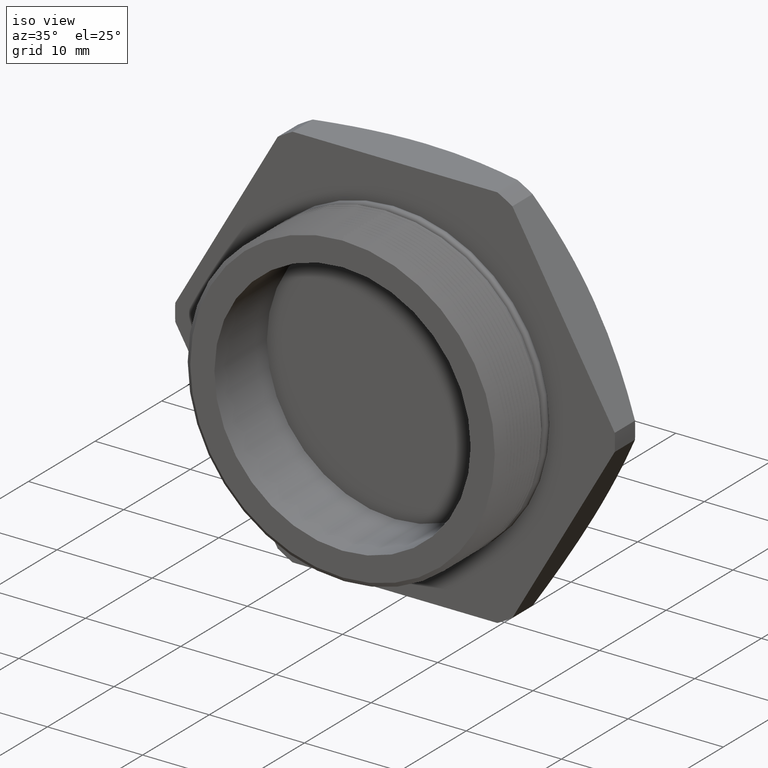
[diagram: clean part render]
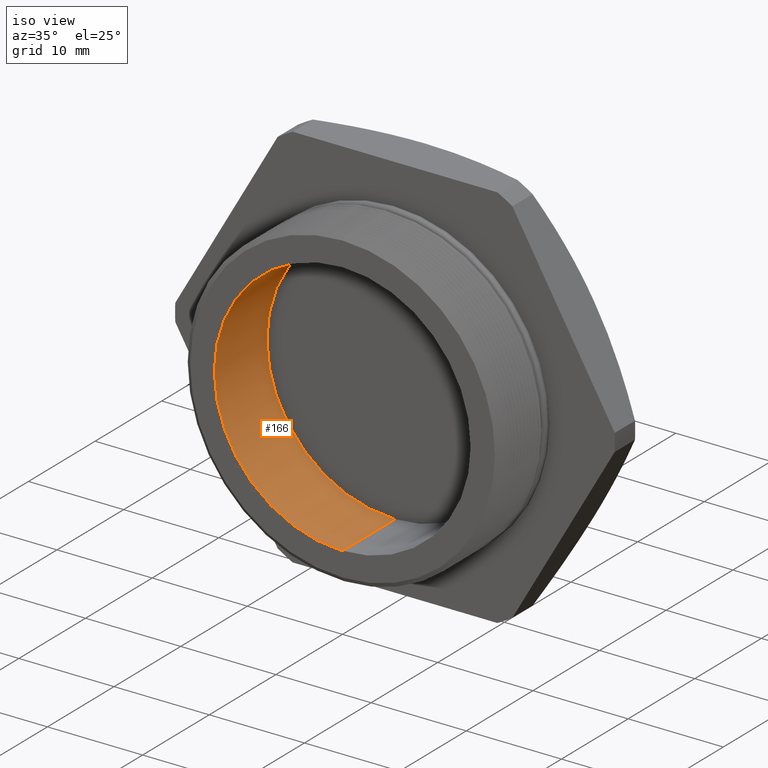
[diagram: same view with one face highlighted and labeled with its STEP entity id]
A machine part, iso view. The second image highlights one B-rep face of the part: STEP entity #166.
In plain terms, the highlighted cylindrical surface (partial cylindrical patch) has radius 13.462 mm, axis along (0, -1, 0).
Its self-contained STEP definition (entity closure, byte-faithful):
#166 = ADVANCED_FACE ( 'NONE', ( #891 ), #890, .F. ) ;
#167 = EDGE_LOOP ( 'NONE', ( #168, #173, #175, #274 ) ) ;
#168 = ORIENTED_EDGE ( 'NONE', *, *, #169, .F. ) ;
#169 = EDGE_CURVE ( 'NONE', #170, #171, #889, .T. ) ;
#170 = VERTEX_POINT ( 'NONE', #880 ) ;
#171 = VERTEX_POINT ( 'NONE', #879 ) ;
#172 = VERTEX_POINT ( 'NONE', #878 ) ;
#173 = ORIENTED_EDGE ( 'NONE', *, *, #174, .T. ) ;
#174 = EDGE_CURVE ( 'NONE', #170, #172, #877, .T. ) ;
#175 = ORIENTED_EDGE ( 'NONE', *, *, #176, .T. ) ;
#176 = EDGE_CURVE ( 'NONE', #172, #177, #873, .T. ) ;
#177 = VERTEX_POINT ( 'NONE', #929 ) ;
#274 = ORIENTED_EDGE ( 'NONE', *, *, #275, .F. ) ;
#275 = EDGE_CURVE ( 'NONE', #171, #177, #1121, .T. ) ;
#871 = CARTESIAN_POINT ( 'NONE',  ( 0.0000000000000000000, -1.714448895351328100E-017, 0.0000000000000000000 ) ) ;
#872 = AXIS2_PLACEMENT_3D ( 'NONE', #871, #931, #930 ) ;
#873 = CIRCLE ( 'NONE', #872, 0.5299999999999999200 ) ;
#874 = DIRECTION ( 'NONE',  ( 0.0000000000000000000, -1.000000000000000000, 0.0000000000000000000 ) ) ;
#875 = VECTOR ( 'NONE', #874, 39.37007874015748100 ) ;
#876 = CARTESIAN_POINT ( 'NONE',  ( 6.490628035480971200E-017, 0.0000000000000000000, 0.5299999999999999200 ) ) ;
#877 = LINE ( 'NONE', #876, #875 ) ;
#878 = CARTESIAN_POINT ( 'NONE',  ( 6.490628035480971200E-017, -1.714448895351328100E-017, 0.5299999999999999200 ) ) ;
#879 = CARTESIAN_POINT ( 'NONE',  ( 0.0000000000000000000, 0.3100000000000000500, -0.5299999999999999200 ) ) ;
#880 = CARTESIAN_POINT ( 'NONE',  ( 6.490628035480971200E-017, 0.3100000000000000500, 0.5299999999999999200 ) ) ;
#881 = DIRECTION ( 'NONE',  ( 0.0000000000000000000, 0.0000000000000000000, -1.000000000000000000 ) ) ;
#882 = DIRECTION ( 'NONE',  ( 0.0000000000000000000, -1.000000000000000000, 0.0000000000000000000 ) ) ;
#883 = CARTESIAN_POINT ( 'NONE',  ( 0.0000000000000000000, 0.3100000000000000500, 0.0000000000000000000 ) ) ;
#884 = AXIS2_PLACEMENT_3D ( 'NONE', #883, #882, #881 ) ;
#885 = DIRECTION ( 'NONE',  ( 0.0000000000000000000, 0.0000000000000000000, -1.000000000000000000 ) ) ;
#886 = DIRECTION ( 'NONE',  ( 0.0000000000000000000, -1.000000000000000000, 0.0000000000000000000 ) ) ;
#887 = CARTESIAN_POINT ( 'NONE',  ( 0.0000000000000000000, 0.0000000000000000000, 0.0000000000000000000 ) ) ;
#888 = AXIS2_PLACEMENT_3D ( 'NONE', #887, #886, #885 ) ;
#889 = CIRCLE ( 'NONE', #884, 0.5299999999999999200 ) ;
#890 = CYLINDRICAL_SURFACE ( 'NONE', #888, 0.5299999999999999200 ) ;
#891 = FACE_OUTER_BOUND ( 'NONE', #167, .T. ) ;
#929 = CARTESIAN_POINT ( 'NONE',  ( 0.0000000000000000000, -1.714448895351328100E-017, -0.5299999999999999200 ) ) ;
#930 = DIRECTION ( 'NONE',  ( 0.0000000000000000000, 0.0000000000000000000, -1.000000000000000000 ) ) ;
#931 = DIRECTION ( 'NONE',  ( 0.0000000000000000000, -1.000000000000000000, 0.0000000000000000000 ) ) ;
#1118 = DIRECTION ( 'NONE',  ( 0.0000000000000000000, -1.000000000000000000, 0.0000000000000000000 ) ) ;
#1119 = VECTOR ( 'NONE', #1118, 39.37007874015748100 ) ;
#1120 = CARTESIAN_POINT ( 'NONE',  ( 0.0000000000000000000, 0.0000000000000000000, -0.5299999999999999200 ) ) ;
#1121 = LINE ( 'NONE', #1120, #1119 ) ;